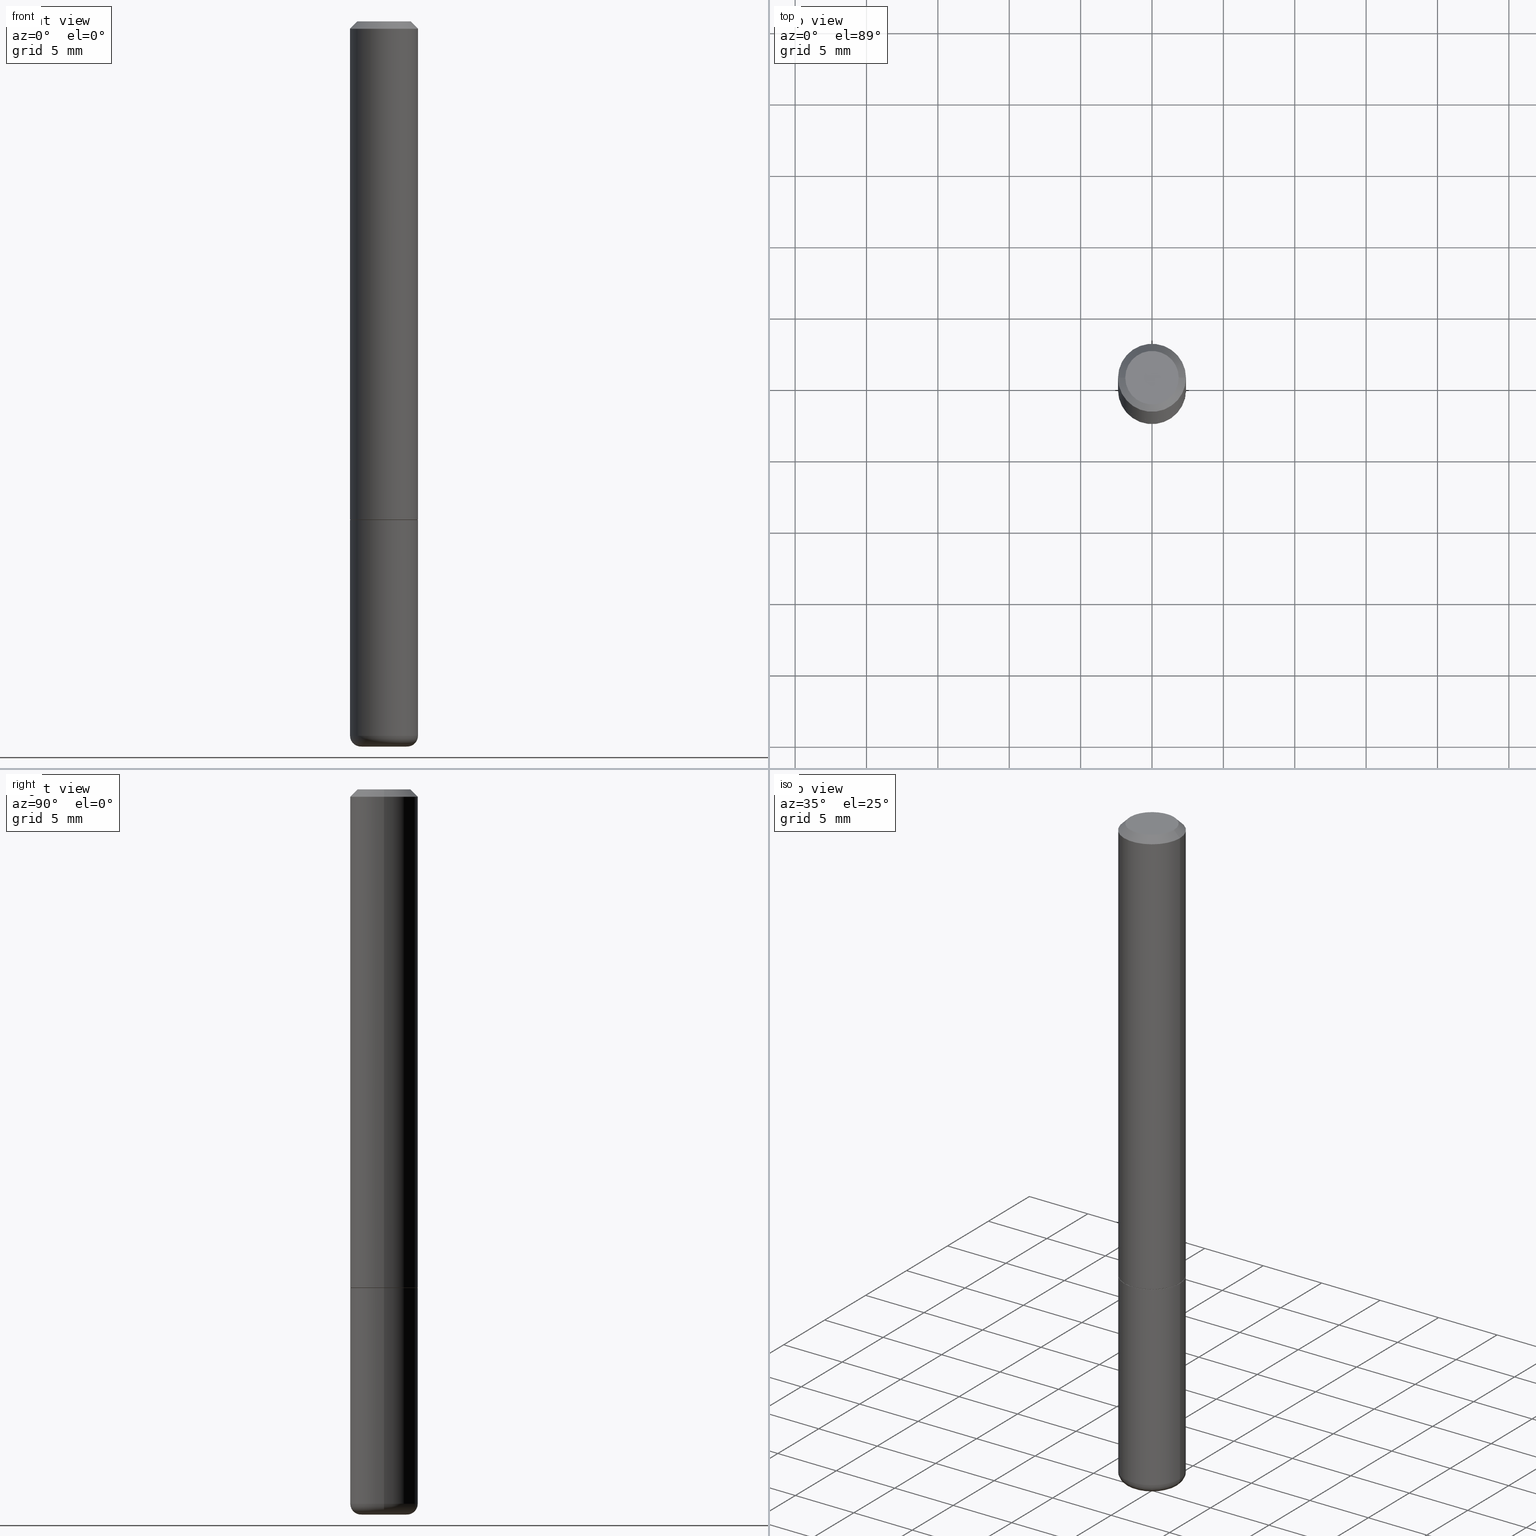
[diagram: canonical four-view strip — front | top / right | iso, engineering-drawing reading convention]
A machine part, canonical four-view strip (front | top / right | iso — engineering-drawing reading convention). The complete STEP part file that produces these views, byte-faithful:
ISO-10303-21;
HEADER;
FILE_DESCRIPTION (( 'STEP AP203' ),
    '1' );
FILE_NAME ('38119.STEP',
    '2023-03-22T20:20:01',
    ( '' ),
    ( '' ),
    'SwSTEP 2.0',
    'SolidWorks 2022',
    '' );
FILE_SCHEMA (( 'CONFIG_CONTROL_DESIGN' ));
ENDSEC;

DATA;
#1 = DIRECTION ( 'NONE',  ( -2.445468806185136877E-29, 3.491481338843145188E-15, 1.000000000000000000 ) ) ;
#2 = CIRCLE ( 'NONE', #376, 0.07374999999999984346 ) ;
#3 = VERTEX_POINT ( 'NONE', #378 ) ;
#4 = CARTESIAN_POINT ( 'NONE',  ( 0.000000000000000000, 0.000000000000000000, 0.000000000000000000 ) ) ;
#5 = CARTESIAN_POINT ( 'NONE',  ( 3.362519608504562260E-29, -4.800786840909324930E-15, -1.375000000000000000 ) ) ;
#6 = CARTESIAN_POINT ( 'NONE',  ( 4.890937612370278413E-31, -6.982962677686297772E-17, -0.02000000000000002123 ) ) ;
#7 = PLANE ( 'NONE',  #329 ) ;
#8 = AXIS2_PLACEMENT_3D ( 'NONE', #6, #212, #298 ) ;
#9 = CIRCLE ( 'NONE', #429, 0.09375000000000001388 ) ;
#10 = DIRECTION ( 'NONE',  ( -2.445468806185136597E-29, 3.491481338843145583E-15, 1.000000000000000000 ) ) ;
#11 = COORDINATED_UNIVERSAL_TIME_OFFSET ( 5, 0, .BEHIND. ) ;
#12 = APPLICATION_CONTEXT ( 'configuration controlled 3d designs of mechanical parts and assemblies' ) ;
#13 = PERSON_AND_ORGANIZATION ( #417, #305 ) ;
#14 = CARTESIAN_POINT ( 'NONE',  ( -0.07374999999999984346, 5.499083108677921624E-16, -3.723527850031186263E-30 ) ) ;
#15 = DIRECTION ( 'NONE',  ( -0.7071067811865232589, 7.493145998870265808E-15, 0.7071067811865715536 ) ) ;
#16 = CONICAL_SURFACE ( 'NONE', #101, 0.09274999999999999911, 0.7853981633974141952 ) ;
#17 = DATE_TIME_ROLE ( 'creation_date' ) ;
#18 = LINE ( 'NONE', #324, #185 ) ;
#19 = EDGE_CURVE ( 'NONE', #174, #431, #207, .T. ) ;
#20 = COORDINATED_UNIVERSAL_TIME_OFFSET ( 5, 0, .BEHIND. ) ;
#21 = VERTEX_POINT ( 'NONE', #195 ) ;
#22 = FACE_OUTER_BOUND ( 'NONE', #361, .T. ) ;
#23 = AXIS2_PLACEMENT_3D ( 'NONE', #233, #261, #397 ) ;
#24 = DATE_AND_TIME ( #118, #150 ) ;
#25 = CARTESIAN_POINT ( 'NONE',  ( 3.360074139698377778E-29, -4.797295359570481134E-15, -1.373999999999999888 ) ) ;
#26 = ADVANCED_FACE ( 'NONE', ( #325 ), #337, .T. ) ;
#27 = ORIENTED_EDGE ( 'NONE', *, *, #55, .F. ) ;
#28 = EDGE_LOOP ( 'NONE', ( #336, #234, #293, #403 ) ) ;
#29 = DIRECTION ( 'NONE',  ( 1.000000000000000000, -6.982962677686266711E-15, 4.876176775795935793E-29 ) ) ;
#30 = DIRECTION ( 'NONE',  ( 1.000000000000000000, -6.982962677686262766E-15, 0.000000000000000000 ) ) ;
#31 = ORIENTED_EDGE ( 'NONE', *, *, #343, .F. ) ;
#32 = AXIS2_PLACEMENT_3D ( 'NONE', #62, #135, #58 ) ;
#33 = ORIENTED_EDGE ( 'NONE', *, *, #158, .T. ) ;
#34 = DIRECTION ( 'NONE',  ( 2.445468806185136597E-29, -3.491481338843145583E-15, -1.000000000000000000 ) ) ;
#35 = ORIENTED_EDGE ( 'NONE', *, *, #19, .F. ) ;
#36 = ORIENTED_EDGE ( 'NONE', *, *, #229, .F. ) ;
#37 = LINE ( 'NONE', #178, #248 ) ;
#38 = AXIS2_PLACEMENT_3D ( 'NONE', #4, #416, #422 ) ;
#39 = CARTESIAN_POINT ( 'NONE',  ( 0.09374999999999981959, -7.130013140679428044E-16, -0.02000000000000002123 ) ) ;
#40 = APPLICATION_PROTOCOL_DEFINITION ( 'international standard', 'config_control_design', 1994, #12 ) ;
#41 = CIRCLE ( 'NONE', #108, 0.09374999999999998612 ) ;
#42 = DIRECTION ( 'NONE',  ( -2.445468806185136597E-29, 3.491481338843145583E-15, 1.000000000000000000 ) ) ;
#43 = DESIGN_CONTEXT ( 'detailed design', #12, 'design' ) ;
#44 = APPROVAL_ROLE ( '' ) ;
#45 = CARTESIAN_POINT ( 'NONE',  ( -0.09374999999999991673, 6.661338147750933326E-16, -4.611501647113969791E-30 ) ) ;
#46 = LENGTH_MEASURE_WITH_UNIT ( LENGTH_MEASURE( 0.02539999999999999897 ), #152 );
#47 = FACE_OUTER_BOUND ( 'NONE', #294, .T. ) ;
#48 = PERSON_AND_ORGANIZATION ( #417, #305 ) ;
#49 = CARTESIAN_POINT ( 'NONE',  ( 4.817674091084948534E-29, -6.878361786135894707E-15, -1.970041113957362811 ) ) ;
#50 = VECTOR ( 'NONE', #132, 39.37007874015748143 ) ;
#51 = DIRECTION ( 'NONE',  ( 2.445468806185136597E-29, -3.491481338843145583E-15, -1.000000000000000000 ) ) ;
#52 = VERTEX_POINT ( 'NONE', #341 ) ;
#53 = PLANE ( 'NONE',  #358 ) ;
#54 = EDGE_CURVE ( 'NONE', #142, #56, #172, .T. ) ;
#55 = EDGE_CURVE ( 'NONE', #3, #412, #41, .T. ) ;
#56 = VERTEX_POINT ( 'NONE', #356 ) ;
#57 = CARTESIAN_POINT ( 'NONE',  ( -0.09274999999999999911, -4.136459999143610400E-15, -1.375000000000000000 ) ) ;
#58 = DIRECTION ( 'NONE',  ( 1.000000000000000000, -6.982962677686267499E-15, 0.000000000000000000 ) ) ;
#59 = ORIENTED_EDGE ( 'NONE', *, *, #426, .T. ) ;
#60 = PLANE ( 'NONE',  #119 ) ;
#61 = CC_DESIGN_DATE_AND_TIME_ASSIGNMENT ( #24, #17, ( #326 ) ) ;
#62 = CARTESIAN_POINT ( 'NONE',  ( 4.890937612370278413E-31, -6.982962677686297772E-17, -0.02000000000000002123 ) ) ;
#63 = ORIENTED_EDGE ( 'NONE', *, *, #144, .F. ) ;
#64 = CARTESIAN_POINT ( 'NONE',  ( -0.06375000000000000111, -6.425390792088831027E-15, -1.970041113957362811 ) ) ;
#65 = LOCAL_TIME ( 16, 20, 1.000000000000000000, #187 ) ;
#66 = ORIENTED_EDGE ( 'NONE', *, *, #158, .F. ) ;
#67 = DIRECTION ( 'NONE',  ( -2.445468806185136597E-29, 3.491481338843145583E-15, 1.000000000000000000 ) ) ;
#68 = ADVANCED_FACE ( 'NONE', ( #218 ), #193, .T. ) ;
#69 = ORIENTED_EDGE ( 'NONE', *, *, #240, .T. ) ;
#70 = DIMENSIONAL_EXPONENTS ( 1.000000000000000000, 0.000000000000000000, 0.000000000000000000, 0.000000000000000000, 0.000000000000000000, 0.000000000000000000, 0.000000000000000000 ) ;
#71 = DIRECTION ( 'NONE',  ( -1.000000000000000000, 7.105427357600993970E-15, 0.000000000000000000 ) ) ;
#72 = DIRECTION ( 'NONE',  ( -2.445468806185136597E-29, 3.491481338843145583E-15, 1.000000000000000000 ) ) ;
#73 = ORIENTED_EDGE ( 'NONE', *, *, #194, .F. ) ;
#74 = APPLICATION_PROTOCOL_DEFINITION ( 'international standard', 'config_control_design', 1994, #277 ) ;
#75 = AXIS2_PLACEMENT_3D ( 'NONE', #287, #284, #419 ) ;
#76 = CARTESIAN_POINT ( 'NONE',  ( 3.362519608504562260E-29, -4.800786840909324930E-15, -1.375000000000000000 ) ) ;
#77 = CARTESIAN_POINT ( 'NONE',  ( 3.362519608504562260E-29, -4.800786840909324930E-15, -1.375000000000000000 ) ) ;
#78 = MECHANICAL_CONTEXT ( 'NONE', #277, 'mechanical' ) ;
#79 = EDGE_CURVE ( 'NONE', #56, #434, #130, .T. ) ;
#80 = APPROVAL_DATE_TIME ( #313, #369 ) ;
#81 = DIRECTION ( 'NONE',  ( 1.000000000000000000, -6.982962677686263555E-15, 0.000000000000000000 ) ) ;
#82 = CIRCLE ( 'NONE', #32, 0.09374999999999981959 ) ;
#83 = DIRECTION ( 'NONE',  ( -2.445468806185136597E-29, 3.491481338843145583E-15, 1.000000000000000000 ) ) ;
#84 = TOROIDAL_SURFACE ( 'NONE', #23, 0.06375000000000000111, 0.02999999999999998848 ) ;
#85 = PRODUCT_DEFINITION_FORMATION_WITH_SPECIFIED_SOURCE ( 'ANY', '', #436, .NOT_KNOWN. ) ;
#86 =( NAMED_UNIT ( * ) PLANE_ANGLE_UNIT ( ) SI_UNIT ( $, .RADIAN. ) );
#87 = DIRECTION ( 'NONE',  ( -1.000000000000000000, 6.982962677686265922E-15, -4.876176775795935793E-29 ) ) ;
#88 = DIRECTION ( 'NONE',  ( -2.445468806185136877E-29, 3.491481338843145188E-15, 1.000000000000000000 ) ) ;
#89 = SECURITY_CLASSIFICATION_LEVEL ( 'unclassified' ) ;
#90 = ADVANCED_FACE ( 'NONE', ( #94 ), #197, .F. ) ;
#91 = APPROVAL_STATUS ( 'not_yet_approved' ) ;
#92 = COORDINATED_UNIVERSAL_TIME_OFFSET ( 5, 0, .BEHIND. ) ;
#93 = AXIS2_PLACEMENT_3D ( 'NONE', #314, #157, #330 ) ;
#94 = FACE_OUTER_BOUND ( 'NONE', #116, .T. ) ;
#95 = CC_DESIGN_APPROVAL ( #250, ( #326 ) ) ;
#96 = DIRECTION ( 'NONE',  ( -2.445468806185136597E-29, 3.491481338843145583E-15, 1.000000000000000000 ) ) ;
#97 = EDGE_CURVE ( 'NONE', #428, #52, #398, .T. ) ;
#98 = CC_DESIGN_PERSON_AND_ORGANIZATION_ASSIGNMENT ( #249, #319, ( #436 ) ) ;
#99 = CARTESIAN_POINT ( 'NONE',  ( 0.000000000000000000, 0.000000000000000000, 0.000000000000000000 ) ) ;
#100 = EDGE_LOOP ( 'NONE', ( #210, #239, #66, #35 ) ) ;
#101 = AXIS2_PLACEMENT_3D ( 'NONE', #355, #10, #352 ) ;
#102 = SECURITY_CLASSIFICATION ( '', '', #89 ) ;
#103 = DIRECTION ( 'NONE',  ( -2.438088387897960049E-29, 3.491481338843145188E-15, 1.000000000000000000 ) ) ;
#104 = DIRECTION ( 'NONE',  ( 0.7071067811865232589, -2.468850131082003836E-15, 0.7071067811865715536 ) ) ;
#105 = ORIENTED_EDGE ( 'NONE', *, *, #194, .T. ) ;
#106 = EDGE_LOOP ( 'NONE', ( #196, #390 ) ) ;
#107 = CYLINDRICAL_SURFACE ( 'NONE', #424, 0.09374999999999998612 ) ;
#108 = AXIS2_PLACEMENT_3D ( 'NONE', #49, #254, #81 ) ;
#109 = ORIENTED_EDGE ( 'NONE', *, *, #283, .F. ) ;
#110 =( GEOMETRIC_REPRESENTATION_CONTEXT ( 3 ) GLOBAL_UNCERTAINTY_ASSIGNED_CONTEXT ( ( #289 ) ) GLOBAL_UNIT_ASSIGNED_CONTEXT ( ( #387, #86, #421 ) ) REPRESENTATION_CONTEXT ( 'NONE', 'WORKASPACE' ) );
#111 = LOCAL_TIME ( 16, 20, 1.000000000000000000, #20 ) ;
#112 = CARTESIAN_POINT ( 'NONE',  ( 3.362519608504562260E-29, -4.800786840909324930E-15, -1.375000000000000000 ) ) ;
#113 = LINE ( 'NONE', #309, #350 ) ;
#114 = ORIENTED_EDGE ( 'NONE', *, *, #407, .F. ) ;
#115 = CARTESIAN_POINT ( 'NONE',  ( 0.09274999999999999911, -5.448456629264727208E-15, -1.375000000000000000 ) ) ;
#116 = EDGE_LOOP ( 'NONE', ( #114, #148, #205 ) ) ;
#117 = DIRECTION ( 'NONE',  ( 1.000000000000000000, -6.982962677686261189E-15, 0.000000000000000000 ) ) ;
#118 = CALENDAR_DATE ( 2023, 22, 3 ) ;
#119 = AXIS2_PLACEMENT_3D ( 'NONE', #405, #103, #231 ) ;
#120 = ADVANCED_FACE ( 'NONE', ( #139 ), #266, .T. ) ;
#121 = PERSON_AND_ORGANIZATION_ROLE ( 'creator' ) ;
#122 = CC_DESIGN_PERSON_AND_ORGANIZATION_ASSIGNMENT ( #188, #121, ( #85 ) ) ;
#123 = DIRECTION ( 'NONE',  ( 0.000000000000000000, 0.000000000000000000, 1.000000000000000000 ) ) ;
#124 = DIRECTION ( 'NONE',  ( -6.982962677686266711E-15, -1.000000000000000000, 3.491481338843145583E-15 ) ) ;
#125 = COORDINATED_UNIVERSAL_TIME_OFFSET ( 5, 0, .BEHIND. ) ;
#126 = AXIS2_PLACEMENT_3D ( 'NONE', #77, #278, #117 ) ;
#127 = DIRECTION ( 'NONE',  ( 1.000000000000000000, -6.982962677686266711E-15, 4.876176775795935793E-29 ) ) ;
#128 = APPROVAL_STATUS ( 'not_yet_approved' ) ;
#129 = EDGE_CURVE ( 'NONE', #434, #227, #82, .T. ) ;
#130 = LINE ( 'NONE', #45, #138 ) ;
#131 = CIRCLE ( 'NONE', #126, 0.09375000000000001388 ) ;
#132 = DIRECTION ( 'NONE',  ( -2.445468806185136877E-29, 3.491481338843145188E-15, 1.000000000000000000 ) ) ;
#133 = CARTESIAN_POINT ( 'NONE',  ( 5.149934974793610063E-16, 0.07374999999999984346, -2.574967487396814399E-16 ) ) ;
#134 = ORIENTED_EDGE ( 'NONE', *, *, #240, .F. ) ;
#135 = DIRECTION ( 'NONE',  ( -2.445468806185136597E-29, 3.491481338843145583E-15, 1.000000000000000000 ) ) ;
#136 = ORIENTED_EDGE ( 'NONE', *, *, #54, .F. ) ;
#137 = EDGE_CURVE ( 'NONE', #227, #434, #140, .T. ) ;
#138 = VECTOR ( 'NONE', #88, 39.37007874015748143 ) ;
#139 = FACE_OUTER_BOUND ( 'NONE', #199, .T. ) ;
#140 = CIRCLE ( 'NONE', #393, 0.09374999999999981959 ) ;
#141 = ORIENTED_EDGE ( 'NONE', *, *, #137, .T. ) ;
#142 = VERTEX_POINT ( 'NONE', #57 ) ;
#143 = DIRECTION ( 'NONE',  ( -2.445468806185136597E-29, 3.491481338843145583E-15, 1.000000000000000000 ) ) ;
#144 = EDGE_CURVE ( 'NONE', #3, #357, #162, .T. ) ;
#145 = ORIENTED_EDGE ( 'NONE', *, *, #224, .T. ) ;
#146 = LINE ( 'NONE', #236, #420 ) ;
#147 = VECTOR ( 'NONE', #104, 39.37007874015748854 ) ;
#148 = ORIENTED_EDGE ( 'NONE', *, *, #168, .T. ) ;
#149 = CONICAL_SURFACE ( 'NONE', #280, 751.2258538476835383, 1.518436449235074814 ) ;
#150 = LOCAL_TIME ( 16, 20, 1.000000000000000000, #125 ) ;
#151 = VERTEX_POINT ( 'NONE', #164 ) ;
#152 =( LENGTH_UNIT ( ) NAMED_UNIT ( * ) SI_UNIT ( $, .METRE. ) );
#153 = DIRECTION ( 'NONE',  ( -2.445468806185136597E-29, 3.491481338843145583E-15, 1.000000000000000000 ) ) ;
#154 = DIRECTION ( 'NONE',  ( 0.9986295347545742773, -7.033825938271995545E-15, -0.05233595624293576470 ) ) ;
#155 = CIRCLE ( 'NONE', #286, 0.09374999999999998612 ) ;
#156 = ADVANCED_FACE ( 'NONE', ( #22 ), #149, .F. ) ;
#157 = DIRECTION ( 'NONE',  ( -2.445468806185136597E-29, 3.491481338843145583E-15, 1.000000000000000000 ) ) ;
#158 = EDGE_CURVE ( 'NONE', #431, #56, #295, .T. ) ;
#159 = ADVANCED_FACE ( 'NONE', ( #430 ), #84, .T. ) ;
#160 = CLOSED_SHELL ( 'NONE', ( #281, #120, #408, #179, #26, #423, #371, #166 ) ) ;
#161 = CONICAL_SURFACE ( 'NONE', #262, 0.09274999999999999911, 0.7853981633974141952 ) ;
#162 = LINE ( 'NONE', #331, #50 ) ;
#163 = AXIS2_PLACEMENT_3D ( 'NONE', #354, #427, #323 ) ;
#164 = CARTESIAN_POINT ( 'NONE',  ( 0.07374999999999984346, -6.094815207017961198E-16, 3.931526600461598749E-30 ) ) ;
#165 = ORIENTED_EDGE ( 'NONE', *, *, #432, .T. ) ;
#166 = ADVANCED_FACE ( 'NONE', ( #363 ), #53, .F. ) ;
#167 = ORIENTED_EDGE ( 'NONE', *, *, #267, .T. ) ;
#168 = EDGE_CURVE ( 'NONE', #21, #428, #304, .T. ) ;
#169 = VECTOR ( 'NONE', #154, 39.37007874015748854 ) ;
#170 = ORIENTED_EDGE ( 'NONE', *, *, #362, .T. ) ;
#171 = ORIENTED_EDGE ( 'NONE', *, *, #97, .T. ) ;
#172 = LINE ( 'NONE', #409, #322 ) ;
#173 = CC_DESIGN_PERSON_AND_ORGANIZATION_ASSIGNMENT ( #13, #279, ( #326 ) ) ;
#174 = VERTEX_POINT ( 'NONE', #115 ) ;
#175 = DIRECTION ( 'NONE',  ( -1.000000000000000000, 6.982962677686265922E-15, -4.876176775795935793E-29 ) ) ;
#176 = EDGE_LOOP ( 'NONE', ( #333, #105, #141, #271 ) ) ;
#177 = AXIS2_PLACEMENT_3D ( 'NONE', #76, #83, #348 ) ;
#178 = CARTESIAN_POINT ( 'NONE',  ( 0.09374999999999991673, -6.546527510330869125E-16, 4.571415727308685602E-30 ) ) ;
#179 = ADVANCED_FACE ( 'NONE', ( #245 ), #315, .T. ) ;
#180 = APPROVAL_DATE_TIME ( #317, #250 ) ;
#181 = FACE_OUTER_BOUND ( 'NONE', #100, .T. ) ;
#182 = DIRECTION ( 'NONE',  ( 1.000000000000000000, -6.982962677686261189E-15, 0.000000000000000000 ) ) ;
#183 = ORIENTED_EDGE ( 'NONE', *, *, #247, .T. ) ;
#184 = CLOSED_SHELL ( 'NONE', ( #90, #282, #68, #288, #401, #159, #156 ) ) ;
#185 = VECTOR ( 'NONE', #225, 39.37007874015748143 ) ;
#186 = PERSON_AND_ORGANIZATION ( #417, #305 ) ;
#187 = COORDINATED_UNIVERSAL_TIME_OFFSET ( 5, 0, .BEHIND. ) ;
#188 = PERSON_AND_ORGANIZATION ( #417, #305 ) ;
#189 = DIRECTION ( 'NONE',  ( 1.000000000000000000, -6.982962677686273021E-15, 0.000000000000000000 ) ) ;
#190 = CALENDAR_DATE ( 2023, 22, 3 ) ;
#191 = AXIS2_PLACEMENT_3D ( 'NONE', #99, #433, #226 ) ;
#192 = PERSON_AND_ORGANIZATION ( #417, #305 ) ;
#193 = CYLINDRICAL_SURFACE ( 'NONE', #163, 0.09374999999999998612 ) ;
#194 = EDGE_CURVE ( 'NONE', #151, #227, #384, .T. ) ;
#195 = CARTESIAN_POINT ( 'NONE',  ( 4.883254903324804780E-29, -6.971174850981510943E-15, -1.996741288408006909 ) ) ;
#196 = ORIENTED_EDGE ( 'NONE', *, *, #439, .T. ) ;
#197 = CONICAL_SURFACE ( 'NONE', #382, 751.2258538476835383, 1.518436449235074814 ) ;
#198 = VECTOR ( 'NONE', #310, 39.37007874015748143 ) ;
#199 = EDGE_LOOP ( 'NONE', ( #33, #235, #381, #268 ) ) ;
#200 = DIRECTION ( 'NONE',  ( 1.000000000000000000, -6.982962677686261189E-15, 0.000000000000000000 ) ) ;
#201 = EDGE_LOOP ( 'NONE', ( #332, #167 ) ) ;
#202 = FACE_OUTER_BOUND ( 'NONE', #290, .T. ) ;
#203 = DIRECTION ( 'NONE',  ( 1.000000000000000000, -6.982962677686267499E-15, 0.000000000000000000 ) ) ;
#204 = AXIS2_PLACEMENT_3D ( 'NONE', #241, #34, #300 ) ;
#205 = ORIENTED_EDGE ( 'NONE', *, *, #224, .F. ) ;
#206 = FACE_OUTER_BOUND ( 'NONE', #176, .T. ) ;
#207 = LINE ( 'NONE', #342, #147 ) ;
#208 = DIRECTION ( 'NONE',  ( 1.000000000000000000, -6.982962677686273021E-15, 0.000000000000000000 ) ) ;
#209 = PRODUCT_RELATED_PRODUCT_CATEGORY ( 'detail', '', ( #436 ) ) ;
#210 = ORIENTED_EDGE ( 'NONE', *, *, #283, .T. ) ;
#211 = CARTESIAN_POINT ( 'NONE',  ( 0.09375000000000001388, -5.455439591942412434E-15, -1.375000000000000000 ) ) ;
#212 = DIRECTION ( 'NONE',  ( 2.445468806185136597E-29, -3.491481338843145583E-15, -1.000000000000000000 ) ) ;
#213 = CIRCLE ( 'NONE', #399, 0.09375000000000001388 ) ;
#214 = SHAPE_DEFINITION_REPRESENTATION ( #367, #221 ) ;
#215 = AXIS2_PLACEMENT_3D ( 'NONE', #219, #123, #418 ) ;
#216 = PERSON_AND_ORGANIZATION ( #417, #305 ) ;
#217 = EDGE_CURVE ( 'NONE', #307, #357, #131, .T. ) ;
#218 = FACE_OUTER_BOUND ( 'NONE', #339, .T. ) ;
#219 = CARTESIAN_POINT ( 'NONE',  ( 0.000000000000000000, 0.000000000000000000, 0.000000000000000000 ) ) ;
#220 = CARTESIAN_POINT ( 'NONE',  ( -0.09375000000000001388, -5.173440498747515894E-15, -1.375000000000000000 ) ) ;
#221 = ADVANCED_BREP_SHAPE_REPRESENTATION ( '38119', ( #230, #380, #215 ), #110 ) ;
#222 = PERSON_AND_ORGANIZATION_ROLE ( 'classification_officer' ) ;
#223 = CIRCLE ( 'NONE', #274, 0.09274999999999999911 ) ;
#224 = EDGE_CURVE ( 'NONE', #52, #428, #389, .T. ) ;
#225 = DIRECTION ( 'NONE',  ( -0.7071067811865466846, 2.468850131082247989E-15, -0.7071067811865483499 ) ) ;
#226 = DIRECTION ( 'NONE',  ( 1.000000000000000000, -6.982962677686266711E-15, 4.876176775795935793E-29 ) ) ;
#227 = VERTEX_POINT ( 'NONE', #260 ) ;
#228 = CONICAL_SURFACE ( 'NONE', #204, 0.09374999999999981959, 0.7853981633974471688 ) ;
#229 = EDGE_CURVE ( 'NONE', #299, #151, #256, .T. ) ;
#230 = MANIFOLD_SOLID_BREP ( 'Body-Move/Copy2[1]', #184 ) ;
#231 = DIRECTION ( 'NONE',  ( 1.000000000000000000, -6.982962677686265922E-15, 4.876176775795935793E-29 ) ) ;
#232 = CARTESIAN_POINT ( 'NONE',  ( 0.06217992131271189021, -7.417162747514426598E-15, -2.000000000000000000 ) ) ;
#233 = CARTESIAN_POINT ( 'NONE',  ( 4.817674091084948534E-29, -6.878361786135894707E-15, -1.970041113957362811 ) ) ;
#234 = ORIENTED_EDGE ( 'NONE', *, *, #353, .T. ) ;
#235 = ORIENTED_EDGE ( 'NONE', *, *, #79, .T. ) ;
#236 = CARTESIAN_POINT ( 'NONE',  ( -4.100959926152762995E-19, -6.971584946974175960E-15, -1.996741288408006909 ) ) ;
#237 = AXIS2_PLACEMENT_3D ( 'NONE', #291, #143, #396 ) ;
#238 = LOCAL_TIME ( 16, 20, 1.000000000000000000, #11 ) ;
#239 = ORIENTED_EDGE ( 'NONE', *, *, #54, .T. ) ;
#240 = EDGE_CURVE ( 'NONE', #428, #3, #252, .T. ) ;
#241 = CARTESIAN_POINT ( 'NONE',  ( 4.890937612370278413E-31, -6.982962677686297772E-17, -0.02000000000000002123 ) ) ;
#242 = CARTESIAN_POINT ( 'NONE',  ( -0.09374999999999981959, 5.848231242562233185E-16, -0.02000000000000002123 ) ) ;
#243 = ORIENTED_EDGE ( 'NONE', *, *, #247, .F. ) ;
#244 = APPROVAL_ROLE ( '' ) ;
#245 = FACE_OUTER_BOUND ( 'NONE', #265, .T. ) ;
#246 = ORIENTED_EDGE ( 'NONE', *, *, #97, .F. ) ;
#247 = EDGE_CURVE ( 'NONE', #142, #174, #223, .T. ) ;
#248 = VECTOR ( 'NONE', #1, 39.37007874015748143 ) ;
#249 = PERSON_AND_ORGANIZATION ( #417, #305 ) ;
#250 = APPROVAL ( #351, 'UNSPECIFIED' ) ;
#251 = CALENDAR_DATE ( 2023, 22, 3 ) ;
#252 = CIRCLE ( 'NONE', #383, 0.02999999999999998848 ) ;
#253 = CARTESIAN_POINT ( 'NONE',  ( 6.546527510331211293E-16, 0.09374999999999521216, -1.375000000000000222 ) ) ;
#254 = DIRECTION ( 'NONE',  ( -2.445468806185136597E-29, 3.491481338843145583E-15, 1.000000000000000000 ) ) ;
#255 = DATE_AND_TIME ( #251, #111 ) ;
#256 = CIRCLE ( 'NONE', #38, 0.07374999999999984346 ) ;
#257 = DIRECTION ( 'NONE',  ( -1.000000000000000000, 6.982962677686265922E-15, 0.000000000000000000 ) ) ;
#258 = ORIENTED_EDGE ( 'NONE', *, *, #311, .T. ) ;
#259 = DIRECTION ( 'NONE',  ( 2.438088387897960049E-29, -3.491481338843145188E-15, -1.000000000000000000 ) ) ;
#260 = CARTESIAN_POINT ( 'NONE',  ( 0.09374999999999981959, -7.130013140679428044E-16, -0.02000000000000002123 ) ) ;
#261 = DIRECTION ( 'NONE',  ( -2.445468806185136597E-29, 3.491481338843145583E-15, 1.000000000000000000 ) ) ;
#262 = AXIS2_PLACEMENT_3D ( 'NONE', #112, #67, #208 ) ;
#263 = LOCAL_TIME ( 16, 20, 1.000000000000000000, #92 ) ;
#264 = CARTESIAN_POINT ( 'NONE',  ( 4.890937612370273194E-29, -6.982962677686291165E-15, -2.000000000000000000 ) ) ;
#265 = EDGE_LOOP ( 'NONE', ( #73, #36, #258, #297 ) ) ;
#266 = CYLINDRICAL_SURFACE ( 'NONE', #191, 0.09374999999999991673 ) ;
#267 = EDGE_CURVE ( 'NONE', #151, #299, #2, .T. ) ;
#268 = ORIENTED_EDGE ( 'NONE', *, *, #362, .F. ) ;
#269 = CARTESIAN_POINT ( 'NONE',  ( 4.817674091084948534E-29, -6.878361786135894707E-15, -1.970041113957362811 ) ) ;
#270 = CC_DESIGN_PERSON_AND_ORGANIZATION_ASSIGNMENT ( #48, #222, ( #102 ) ) ;
#271 = ORIENTED_EDGE ( 'NONE', *, *, #311, .F. ) ;
#272 = DIRECTION ( 'NONE',  ( -2.445468806185136597E-29, 3.491481338843145583E-15, 1.000000000000000000 ) ) ;
#273 = CARTESIAN_POINT ( 'NONE',  ( 0.09375000000000001388, -5.451948110603568638E-15, -1.373999999999999888 ) ) ;
#274 = AXIS2_PLACEMENT_3D ( 'NONE', #316, #153, #189 ) ;
#275 = APPROVAL_PERSON_ORGANIZATION ( #192, #369, #349 ) ;
#276 = CALENDAR_DATE ( 2023, 22, 3 ) ;
#277 = APPLICATION_CONTEXT ( 'configuration controlled 3d designs of mechanical parts and assemblies' ) ;
#278 = DIRECTION ( 'NONE',  ( -2.445468806185136597E-29, 3.491481338843145583E-15, 1.000000000000000000 ) ) ;
#279 = PERSON_AND_ORGANIZATION_ROLE ( 'creator' ) ;
#280 = AXIS2_PLACEMENT_3D ( 'NONE', #335, #368, #257 ) ;
#281 = ADVANCED_FACE ( 'NONE', ( #181 ), #16, .T. ) ;
#282 = ADVANCED_FACE ( 'NONE', ( #47 ), #410, .T. ) ;
#283 = EDGE_CURVE ( 'NONE', #174, #142, #435, .T. ) ;
#284 = DIRECTION ( 'NONE',  ( -2.445468806185136597E-29, 3.491481338843145583E-15, 1.000000000000000000 ) ) ;
#285 = PERSON_AND_ORGANIZATION_ROLE ( 'design_supplier' ) ;
#286 = AXIS2_PLACEMENT_3D ( 'NONE', #269, #373, #340 ) ;
#287 = CARTESIAN_POINT ( 'NONE',  ( 4.817674091084948534E-29, -6.878361786135894707E-15, -1.970041113957362811 ) ) ;
#288 = ADVANCED_FACE ( 'NONE', ( #320 ), #7, .F. ) ;
#289 = UNCERTAINTY_MEASURE_WITH_UNIT (LENGTH_MEASURE( 1.000000000000000082E-05 ), #387, 'distance_accuracy_value', 'NONE');
#290 = EDGE_LOOP ( 'NONE', ( #109, #243 ) ) ;
#291 = CARTESIAN_POINT ( 'NONE',  ( 0.000000000000000000, 0.000000000000000000, 0.000000000000000000 ) ) ;
#292 = CC_DESIGN_PERSON_AND_ORGANIZATION_ASSIGNMENT ( #186, #285, ( #85 ) ) ;
#293 = ORIENTED_EDGE ( 'NONE', *, *, #144, .T. ) ;
#294 = EDGE_LOOP ( 'NONE', ( #171, #406, #27, #134 ) ) ;
#295 = CIRCLE ( 'NONE', #303, 0.09375000000000001388 ) ;
#296 = APPROVAL_PERSON_ORGANIZATION ( #216, #250, #44 ) ;
#297 = ORIENTED_EDGE ( 'NONE', *, *, #129, .T. ) ;
#298 = DIRECTION ( 'NONE',  ( -1.000000000000000000, 6.982962677686267499E-15, 0.000000000000000000 ) ) ;
#299 = VERTEX_POINT ( 'NONE', #14 ) ;
#300 = DIRECTION ( 'NONE',  ( -1.000000000000000000, 6.982962677686267499E-15, 0.000000000000000000 ) ) ;
#301 = DIRECTION ( 'NONE',  ( -2.445468806185136597E-29, 3.491481338843145583E-15, 1.000000000000000000 ) ) ;
#302 = ORIENTED_EDGE ( 'NONE', *, *, #79, .F. ) ;
#303 = AXIS2_PLACEMENT_3D ( 'NONE', #25, #96, #200 ) ;
#304 = LINE ( 'NONE', #414, #169 ) ;
#305 = ORGANIZATION ( 'UNSPECIFIED', 'UNSPECIFIED', '' ) ;
#306 = APPROVAL ( #91, 'UNSPECIFIED' ) ;
#307 = VERTEX_POINT ( 'NONE', #220 ) ;
#308 = CARTESIAN_POINT ( 'NONE',  ( 3.360074139698377778E-29, -4.797295359570481134E-15, -1.373999999999999888 ) ) ;
#309 = CARTESIAN_POINT ( 'NONE',  ( -0.09374999999999998612, 6.661338147750938256E-16, -4.611501647113973295E-30 ) ) ;
#310 = DIRECTION ( 'NONE',  ( 0.7071067811865466846, -7.319954787623252890E-15, -0.7071067811865483499 ) ) ;
#311 = EDGE_CURVE ( 'NONE', #299, #434, #18, .T. ) ;
#312 = CARTESIAN_POINT ( 'NONE',  ( 0.06375000000000000111, -7.323525656838393894E-15, -1.970041113957362811 ) ) ;
#313 = DATE_AND_TIME ( #388, #238 ) ;
#314 = CARTESIAN_POINT ( 'NONE',  ( 4.890937612370273194E-29, -6.982962677686291165E-15, -2.000000000000000000 ) ) ;
#315 = CONICAL_SURFACE ( 'NONE', #8, 0.09374999999999981959, 0.7853981633974471688 ) ;
#316 = CARTESIAN_POINT ( 'NONE',  ( 3.362519608504562260E-29, -4.800786840909324930E-15, -1.375000000000000000 ) ) ;
#317 = DATE_AND_TIME ( #276, #65 ) ;
#318 = DIRECTION ( 'NONE',  ( 2.438088387897960049E-29, -3.491481338843145188E-15, -1.000000000000000000 ) ) ;
#319 = PERSON_AND_ORGANIZATION_ROLE ( 'design_owner' ) ;
#320 = FACE_OUTER_BOUND ( 'NONE', #106, .T. ) ;
#321 = DATE_AND_TIME ( #190, #263 ) ;
#322 = VECTOR ( 'NONE', #15, 39.37007874015748854 ) ;
#323 = DIRECTION ( 'NONE',  ( 1.000000000000000000, -6.982962677686266711E-15, 4.876176775795935793E-29 ) ) ;
#324 = CARTESIAN_POINT ( 'NONE',  ( -0.09374999999999981959, 5.848231242562233185E-16, -0.02000000000000002123 ) ) ;
#325 = FACE_OUTER_BOUND ( 'NONE', #404, .T. ) ;
#326 = PRODUCT_DEFINITION ( 'UNKNOWN', '', #85, #43 ) ;
#327 = DIRECTION ( 'NONE',  ( -1.000000000000000000, 6.982962677686265922E-15, 0.000000000000000000 ) ) ;
#328 = AXIS2_PLACEMENT_3D ( 'NONE', #264, #394, #30 ) ;
#329 = AXIS2_PLACEMENT_3D ( 'NONE', #253, #318, #87 ) ;
#330 = DIRECTION ( 'NONE',  ( 1.000000000000000000, -6.982962677686262766E-15, 0.000000000000000000 ) ) ;
#331 = CARTESIAN_POINT ( 'NONE',  ( 0.09374999999999998612, -6.546527510330874055E-16, 4.571415727308689105E-30 ) ) ;
#332 = ORIENTED_EDGE ( 'NONE', *, *, #229, .T. ) ;
#333 = ORIENTED_EDGE ( 'NONE', *, *, #267, .F. ) ;
#334 = DIRECTION ( 'NONE',  ( 7.105427357601001859E-15, 1.000000000000000000, -3.491481338843145583E-15 ) ) ;
#335 = CARTESIAN_POINT ( 'NONE',  ( 1.011612679909314432E-27, -1.444314801770192841E-13, -41.36682002856548479 ) ) ;
#336 = ORIENTED_EDGE ( 'NONE', *, *, #432, .F. ) ;
#337 = CYLINDRICAL_SURFACE ( 'NONE', #237, 0.09374999999999991673 ) ;
#338 = CIRCLE ( 'NONE', #365, 0.02999999999999998848 ) ;
#339 = EDGE_LOOP ( 'NONE', ( #437, #165, #374, #63 ) ) ;
#340 = DIRECTION ( 'NONE',  ( 1.000000000000000000, -6.982962677686263555E-15, 0.000000000000000000 ) ) ;
#341 = CARTESIAN_POINT ( 'NONE',  ( -0.06217992131271189021, -6.376687867529136455E-15, -2.000000000000000000 ) ) ;
#342 = CARTESIAN_POINT ( 'NONE',  ( 0.09274999999999999911, -5.448456629264727208E-15, -1.375000000000000000 ) ) ;
#343 = EDGE_CURVE ( 'NONE', #52, #412, #338, .T. ) ;
#344 = ORIENTED_EDGE ( 'NONE', *, *, #168, .F. ) ;
#345 = FACE_OUTER_BOUND ( 'NONE', #379, .T. ) ;
#346 = DIRECTION ( 'NONE',  ( -2.445468806185136877E-29, 3.491481338843145188E-15, 1.000000000000000000 ) ) ;
#347 = CARTESIAN_POINT ( 'NONE',  ( 0.000000000000000000, 0.000000000000000000, 0.000000000000000000 ) ) ;
#348 = DIRECTION ( 'NONE',  ( 1.000000000000000000, -6.982962677686273021E-15, 0.000000000000000000 ) ) ;
#349 = APPROVAL_ROLE ( '' ) ;
#350 = VECTOR ( 'NONE', #346, 39.37007874015748143 ) ;
#351 = APPROVAL_STATUS ( 'not_yet_approved' ) ;
#352 = DIRECTION ( 'NONE',  ( 1.000000000000000000, -6.982962677686273021E-15, 0.000000000000000000 ) ) ;
#353 = EDGE_CURVE ( 'NONE', #412, #3, #155, .T. ) ;
#354 = CARTESIAN_POINT ( 'NONE',  ( 0.000000000000000000, 0.000000000000000000, 0.000000000000000000 ) ) ;
#355 = CARTESIAN_POINT ( 'NONE',  ( 3.362519608504562260E-29, -4.800786840909324930E-15, -1.375000000000000000 ) ) ;
#356 = CARTESIAN_POINT ( 'NONE',  ( -0.09375000000000001388, -1.767428678398575728E-15, -1.373999999999999888 ) ) ;
#357 = VERTEX_POINT ( 'NONE', #211 ) ;
#358 = AXIS2_PLACEMENT_3D ( 'NONE', #133, #259, #175 ) ;
#359 = CC_DESIGN_APPROVAL ( #369, ( #102 ) ) ;
#360 = CARTESIAN_POINT ( 'NONE',  ( 1.011612679909314432E-27, -1.444314801770192841E-13, -41.36682002856548479 ) ) ;
#361 = EDGE_LOOP ( 'NONE', ( #344, #440, #246 ) ) ;
#362 = EDGE_CURVE ( 'NONE', #431, #227, #37, .T. ) ;
#363 = FACE_OUTER_BOUND ( 'NONE', #201, .T. ) ;
#364 = ORIENTED_EDGE ( 'NONE', *, *, #19, .T. ) ;
#365 = AXIS2_PLACEMENT_3D ( 'NONE', #64, #334, #71 ) ;
#366 = APPROVAL_PERSON_ORGANIZATION ( #391, #306, #244 ) ;
#367 = PRODUCT_DEFINITION_SHAPE ( 'NONE', 'NONE',  #326 ) ;
#368 = DIRECTION ( 'NONE',  ( 2.445468806185136597E-29, -3.491481338843145583E-15, -1.000000000000000000 ) ) ;
#369 = APPROVAL ( #128, 'UNSPECIFIED' ) ;
#370 = CARTESIAN_POINT ( 'NONE',  ( 4.890937612370278413E-31, -6.982962677686297772E-17, -0.02000000000000002123 ) ) ;
#371 = ADVANCED_FACE ( 'NONE', ( #202 ), #60, .F. ) ;
#372 = EDGE_LOOP ( 'NONE', ( #31, #145, #69, #395 ) ) ;
#373 = DIRECTION ( 'NONE',  ( -2.445468806185136597E-29, 3.491481338843145583E-15, 1.000000000000000000 ) ) ;
#374 = ORIENTED_EDGE ( 'NONE', *, *, #439, .F. ) ;
#375 = DIRECTION ( 'NONE',  ( -0.9986295347545742773, 6.790662755453671622E-15, -0.05233595624293576470 ) ) ;
#376 = AXIS2_PLACEMENT_3D ( 'NONE', #347, #42, #127 ) ;
#377 = CC_DESIGN_SECURITY_CLASSIFICATION ( #102, ( #85 ) ) ;
#378 = CARTESIAN_POINT ( 'NONE',  ( 0.09374999999999998612, -7.533014537168982211E-15, -1.970041113957362811 ) ) ;
#379 = EDGE_LOOP ( 'NONE', ( #136, #183, #364, #442 ) ) ;
#380 = MANIFOLD_SOLID_BREP ( 'Body-Move/Copy2[2]', #160 ) ;
#381 = ORIENTED_EDGE ( 'NONE', *, *, #137, .F. ) ;
#382 = AXIS2_PLACEMENT_3D ( 'NONE', #360, #51, #327 ) ;
#383 = AXIS2_PLACEMENT_3D ( 'NONE', #312, #124, #386 ) ;
#384 = LINE ( 'NONE', #39, #198 ) ;
#385 = CC_DESIGN_DATE_AND_TIME_ASSIGNMENT ( #321, #425, ( #102 ) ) ;
#386 = DIRECTION ( 'NONE',  ( 1.000000000000000000, -6.982962677686270655E-15, 0.000000000000000000 ) ) ;
#387 =( CONVERSION_BASED_UNIT ( 'INCH', #46 ) LENGTH_UNIT ( ) NAMED_UNIT ( #70 ) );
#388 = CALENDAR_DATE ( 2023, 22, 3 ) ;
#389 = CIRCLE ( 'NONE', #93, 0.06217992131271189021 ) ;
#390 = ORIENTED_EDGE ( 'NONE', *, *, #217, .T. ) ;
#391 = PERSON_AND_ORGANIZATION ( #417, #305 ) ;
#392 = APPROVAL_DATE_TIME ( #255, #306 ) ;
#393 = AXIS2_PLACEMENT_3D ( 'NONE', #370, #402, #203 ) ;
#394 = DIRECTION ( 'NONE',  ( -2.445468806185136597E-29, 3.491481338843145583E-15, 1.000000000000000000 ) ) ;
#395 = ORIENTED_EDGE ( 'NONE', *, *, #353, .F. ) ;
#396 = DIRECTION ( 'NONE',  ( 1.000000000000000000, -6.982962677686266711E-15, 4.876176775795935793E-29 ) ) ;
#397 = DIRECTION ( 'NONE',  ( 1.000000000000000000, -6.982962677686263555E-15, 4.883557194083111219E-29 ) ) ;
#398 = CIRCLE ( 'NONE', #328, 0.06217992131271189021 ) ;
#399 = AXIS2_PLACEMENT_3D ( 'NONE', #308, #301, #413 ) ;
#400 = CARTESIAN_POINT ( 'NONE',  ( 0.000000000000000000, 0.000000000000000000, 0.000000000000000000 ) ) ;
#401 = ADVANCED_FACE ( 'NONE', ( #438 ), #107, .T. ) ;
#402 = DIRECTION ( 'NONE',  ( -2.445468806185136597E-29, 3.491481338843145583E-15, 1.000000000000000000 ) ) ;
#403 = ORIENTED_EDGE ( 'NONE', *, *, #217, .F. ) ;
#404 = EDGE_LOOP ( 'NONE', ( #302, #59, #170, #415 ) ) ;
#405 = CARTESIAN_POINT ( 'NONE',  ( 3.362519608504562260E-29, -4.800786840909324930E-15, -1.375000000000000000 ) ) ;
#406 = ORIENTED_EDGE ( 'NONE', *, *, #343, .T. ) ;
#407 = EDGE_CURVE ( 'NONE', #21, #52, #146, .T. ) ;
#408 = ADVANCED_FACE ( 'NONE', ( #206 ), #228, .T. ) ;
#409 = CARTESIAN_POINT ( 'NONE',  ( -0.09274999999999999911, -4.141758453491832014E-15, -1.375000000000000000 ) ) ;
#410 = TOROIDAL_SURFACE ( 'NONE', #75, 0.06375000000000000111, 0.02999999999999998848 ) ;
#411 = CC_DESIGN_APPROVAL ( #306, ( #85 ) ) ;
#412 = VERTEX_POINT ( 'NONE', #441 ) ;
#413 = DIRECTION ( 'NONE',  ( 1.000000000000000000, -6.982962677686261189E-15, 0.000000000000000000 ) ) ;
#414 = CARTESIAN_POINT ( 'NONE',  ( 4.100959927129356329E-19, -6.971584946974175960E-15, -1.996741288408006909 ) ) ;
#415 = ORIENTED_EDGE ( 'NONE', *, *, #129, .F. ) ;
#416 = DIRECTION ( 'NONE',  ( -2.445468806185136597E-29, 3.491481338843145583E-15, 1.000000000000000000 ) ) ;
#417 = PERSON ( 'UNSPECIFIED', 'UNSPECIFIED', 'UNSPECIFIED', ('UNSPECIFIED'), ('UNSPECIFIED'), ('UNSPECIFIED') ) ;
#418 = DIRECTION ( 'NONE',  ( 1.000000000000000000, 0.000000000000000000, 0.000000000000000000 ) ) ;
#419 = DIRECTION ( 'NONE',  ( 1.000000000000000000, -6.982962677686263555E-15, 4.883557194083111219E-29 ) ) ;
#420 = VECTOR ( 'NONE', #375, 39.37007874015748854 ) ;
#421 =( NAMED_UNIT ( * ) SI_UNIT ( $, .STERADIAN. ) SOLID_ANGLE_UNIT ( ) );
#422 = DIRECTION ( 'NONE',  ( 1.000000000000000000, -6.982962677686266711E-15, 4.876176775795935793E-29 ) ) ;
#423 = ADVANCED_FACE ( 'NONE', ( #345 ), #161, .T. ) ;
#424 = AXIS2_PLACEMENT_3D ( 'NONE', #400, #272, #29 ) ;
#425 = DATE_TIME_ROLE ( 'classification_date' ) ;
#426 = EDGE_CURVE ( 'NONE', #56, #431, #213, .T. ) ;
#427 = DIRECTION ( 'NONE',  ( -2.445468806185136597E-29, 3.491481338843145583E-15, 1.000000000000000000 ) ) ;
#428 = VERTEX_POINT ( 'NONE', #232 ) ;
#429 = AXIS2_PLACEMENT_3D ( 'NONE', #5, #72, #182 ) ;
#430 = FACE_OUTER_BOUND ( 'NONE', #372, .T. ) ;
#431 = VERTEX_POINT ( 'NONE', #273 ) ;
#432 = EDGE_CURVE ( 'NONE', #412, #307, #113, .T. ) ;
#433 = DIRECTION ( 'NONE',  ( -2.445468806185136597E-29, 3.491481338843145583E-15, 1.000000000000000000 ) ) ;
#434 = VERTEX_POINT ( 'NONE', #242 ) ;
#435 = CIRCLE ( 'NONE', #177, 0.09274999999999999911 ) ;
#436 = PRODUCT ( '38119', '38119', '', ( #78 ) ) ;
#437 = ORIENTED_EDGE ( 'NONE', *, *, #55, .T. ) ;
#438 = FACE_OUTER_BOUND ( 'NONE', #28, .T. ) ;
#439 = EDGE_CURVE ( 'NONE', #357, #307, #9, .T. ) ;
#440 = ORIENTED_EDGE ( 'NONE', *, *, #407, .T. ) ;
#441 = CARTESIAN_POINT ( 'NONE',  ( -0.09374999999999998612, -5.173440498747515894E-15, -1.970041113957362811 ) ) ;
#442 = ORIENTED_EDGE ( 'NONE', *, *, #426, .F. ) ;
ENDSEC;
END-ISO-10303-21;
